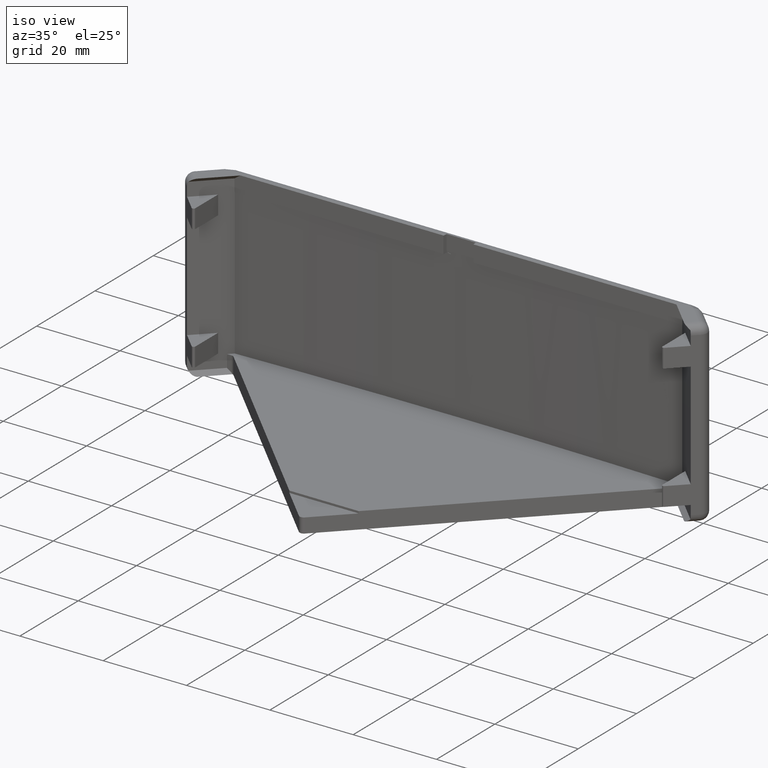
[diagram: clean part render]
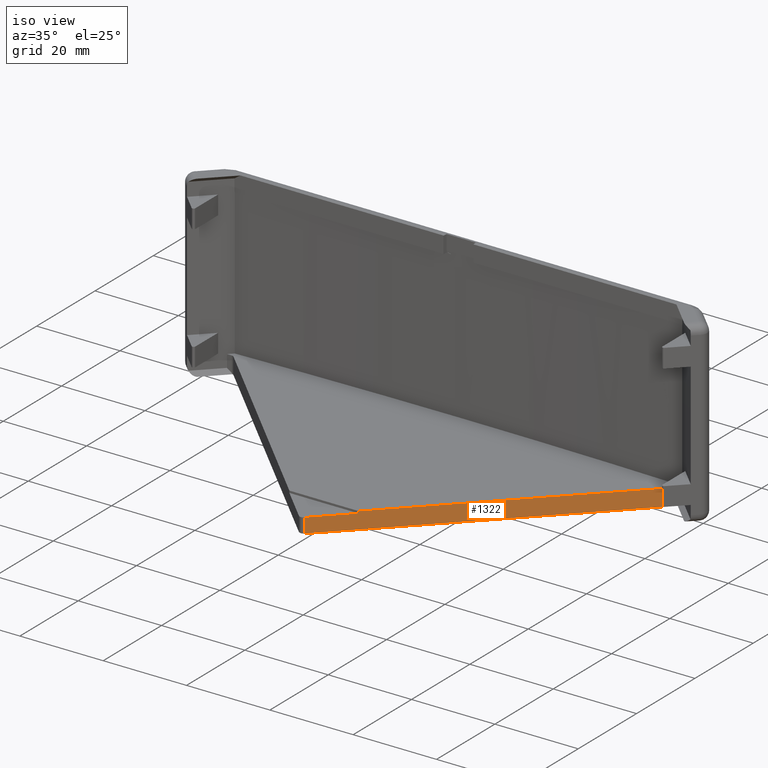
[diagram: same view with one face highlighted and labeled with its STEP entity id]
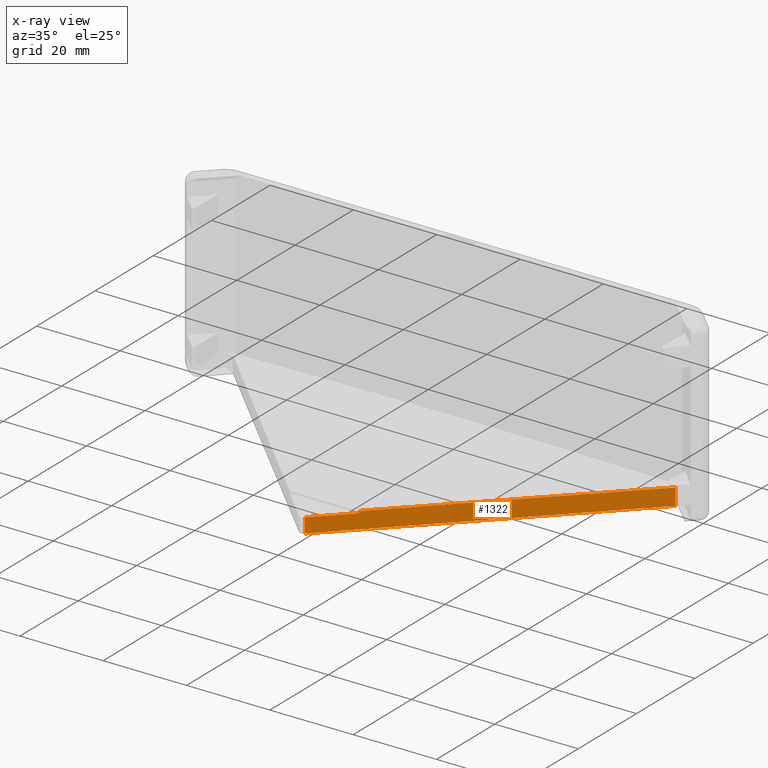
[diagram: x-ray of the same camera — body ghosted, the highlighted face saturated]
A machine part, iso view. The second image highlights one B-rep face of the part: STEP entity #1322.
The next image is the same camera in x-ray: the body ghosted, the highlighted face saturated — about 0% of this face is hidden behind the body in this view.
In plain terms, the highlighted planar face has unit normal (0.7071, -0.7071, 0).
Its self-contained STEP definition (entity closure, byte-faithful):
#60=PLANE('',#1451);
#82=LINE('',#1945,#221);
#97=LINE('',#1986,#236);
#155=LINE('',#2116,#294);
#156=LINE('',#2120,#295);
#199=LINE('',#2223,#338);
#200=LINE('',#2224,#339);
#221=VECTOR('',#1544,1000.);
#236=VECTOR('',#1573,1000.);
#294=VECTOR('',#1679,1000.);
#295=VECTOR('',#1684,1000.);
#338=VECTOR('',#1787,1000.);
#339=VECTOR('',#1788,1000.);
#411=FACE_OUTER_BOUND('',#486,.T.);
#486=EDGE_LOOP('',(#1133,#1134,#1135,#1136,#1137,#1138));
#588=VERTEX_POINT('',#1942);
#589=VERTEX_POINT('',#1944);
#606=VERTEX_POINT('',#1982);
#608=VERTEX_POINT('',#1985);
#656=VERTEX_POINT('',#2114);
#657=VERTEX_POINT('',#2118);
#713=EDGE_CURVE('',#589,#588,#82,.T.);
#733=EDGE_CURVE('',#606,#608,#97,.T.);
#801=EDGE_CURVE('',#606,#656,#155,.T.);
#803=EDGE_CURVE('',#656,#657,#156,.T.);
#856=EDGE_CURVE('',#588,#608,#199,.T.);
#857=EDGE_CURVE('',#657,#589,#200,.T.);
#1133=ORIENTED_EDGE('',*,*,#713,.T.);
#1134=ORIENTED_EDGE('',*,*,#856,.T.);
#1135=ORIENTED_EDGE('',*,*,#733,.F.);
#1136=ORIENTED_EDGE('',*,*,#801,.T.);
#1137=ORIENTED_EDGE('',*,*,#803,.T.);
#1138=ORIENTED_EDGE('',*,*,#857,.T.);
#1322=ADVANCED_FACE('',(#411),#60,.T.);
#1451=AXIS2_PLACEMENT_3D('',#2222,#1785,#1786);
#1544=DIRECTION('',(0.707106781186542,0.707106781186553,0.));
#1573=DIRECTION('',(0.707106781186542,0.707106781186553,0.));
#1679=DIRECTION('',(0.,0.,-1.));
#1684=DIRECTION('',(-0.707106781186542,-0.707106781186553,-3.06658683336677E-16));
#1785=DIRECTION('center_axis',(0.707106781186553,-0.707106781186542,0.));
#1786=DIRECTION('ref_axis',(-0.707106781186542,-0.707106781186553,0.));
#1787=DIRECTION('',(0.,0.,1.));
#1788=DIRECTION('',(0.,0.,-1.));
#1942=CARTESIAN_POINT('',(53.5355339059323,-0.292893218812595,-21.5));
#1944=CARTESIAN_POINT('',(1.20710678118659,-52.6213203435591,-21.5));
#1945=CARTESIAN_POINT('',(8.8284271247457,-44.9999999999999,-21.5));
#1982=CARTESIAN_POINT('',(8.8284271247457,-44.9999999999999,-17.5));
#1985=CARTESIAN_POINT('',(53.5355339059323,-0.292893218812595,-17.5));
#1986=CARTESIAN_POINT('',(8.8284271247457,-44.9999999999999,-17.5));
#2114=CARTESIAN_POINT('',(8.8284271247457,-44.9999999999999,-18.));
#2116=CARTESIAN_POINT('',(8.8284271247457,-44.9999999999999,-17.5));
#2118=CARTESIAN_POINT('',(1.20710678118659,-52.6213203435591,-18.));
#2120=CARTESIAN_POINT('',(-26.6500000000003,-80.4784271247464,-18.));
#2222=CARTESIAN_POINT('Origin',(8.8284271247457,-44.9999999999999,-17.5));
#2223=CARTESIAN_POINT('',(53.5355339059323,-0.292893218812594,-17.5));
#2224=CARTESIAN_POINT('',(1.20710678118659,-52.6213203435591,-17.5));